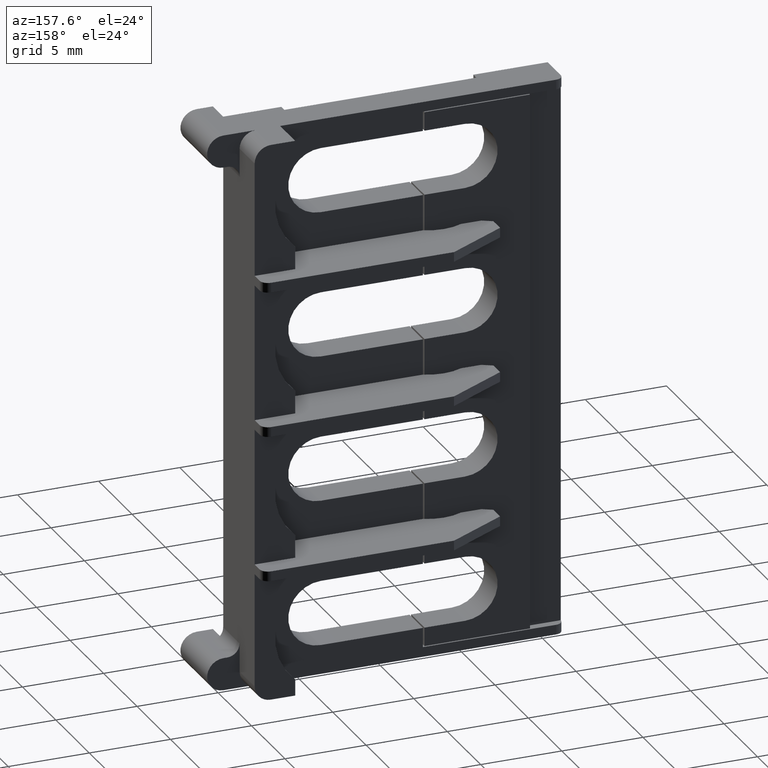
[diagram: clean part render]
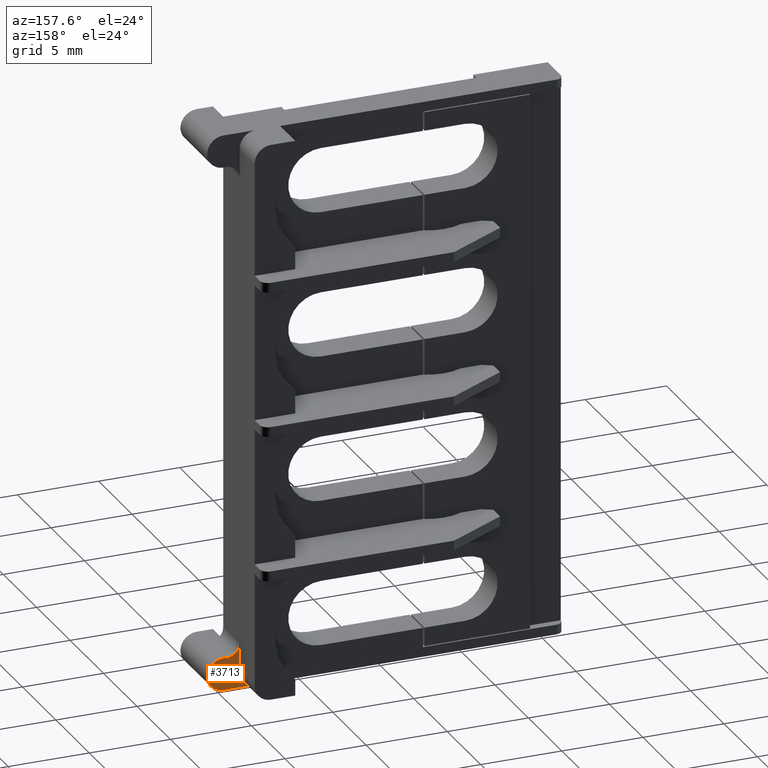
[diagram: same view with one face highlighted and labeled with its STEP entity id]
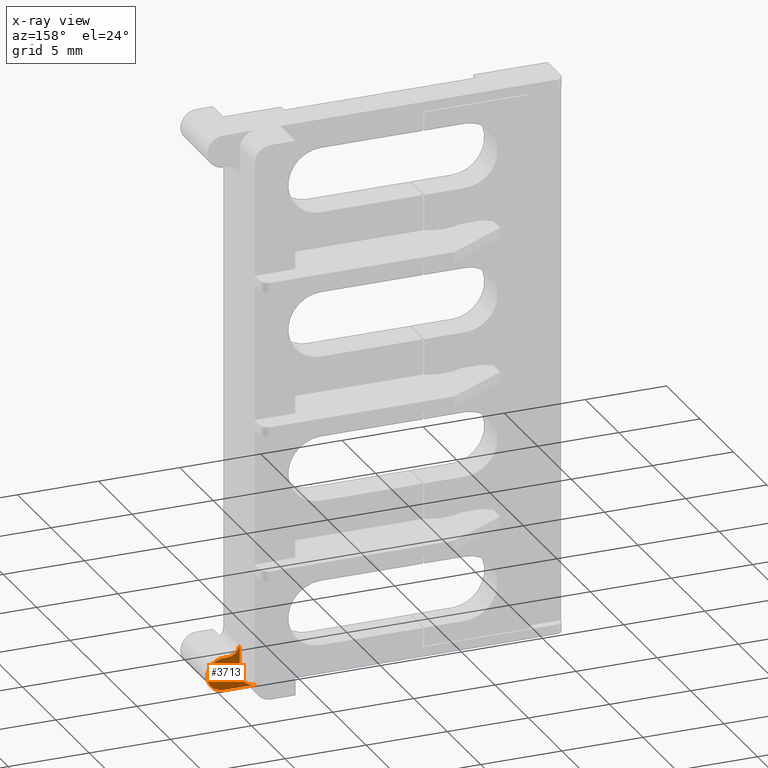
[diagram: x-ray of the same camera — body ghosted, the highlighted face saturated]
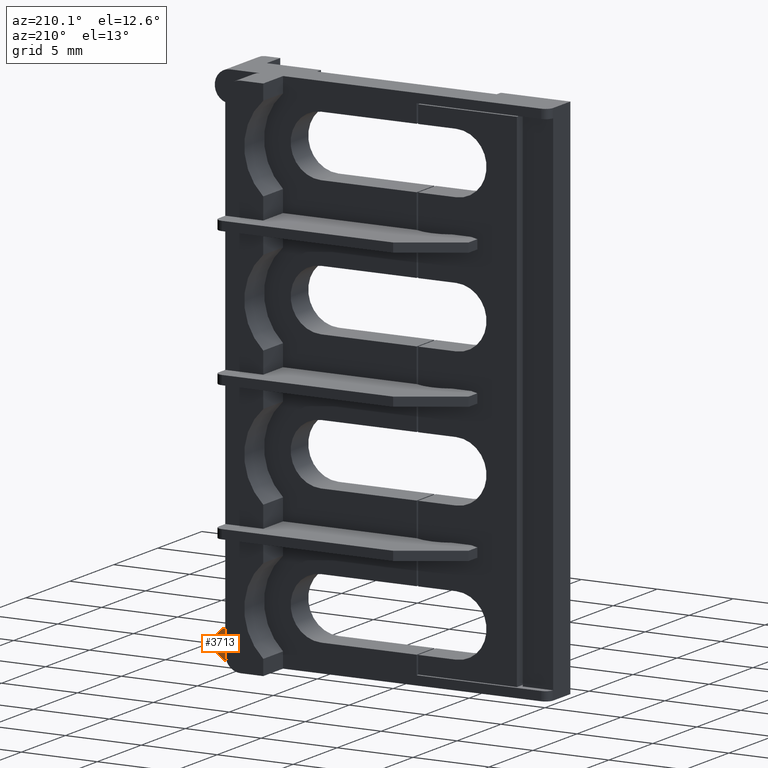
[diagram: same view with one face highlighted and labeled with its STEP entity id]
A machine part, auxiliary view. The second image highlights one B-rep face of the part: STEP entity #3713.
The next image is the same camera in x-ray: the body ghosted, the highlighted face saturated — about 0% of this face is hidden behind the body in this view.
A second angle (auxiliary view) of the same face is appended — the face is thin or edge-on in the first view.
In plain terms, the highlighted planar face has unit normal (-0, 1, -0).
Its self-contained STEP definition (entity closure, byte-faithful):
#5 = CARTESIAN_POINT ( 'NONE',  ( 463.1252094327940100, 146.0878730676890000, 1.600000000000115100 ) ) ;
#20 = DIRECTION ( 'NONE',  ( 0.0000000000000000000, 0.0000000000000000000, 1.000000000000000000 ) ) ;
#32 = DIRECTION ( 'NONE',  ( -2.530253133731424900E-033, 1.000000000000000000, -2.733577826868160200E-020 ) ) ;
#286 = PLANE ( 'NONE',  #3252 ) ;
#292 = CARTESIAN_POINT ( 'NONE',  ( 457.5799457489669600, 146.0878730676890000, 0.6000000000000579300 ) ) ;
#297 = DIRECTION ( 'NONE',  ( 0.0000000000000000000, 2.733577826868160200E-020, 1.000000000000000000 ) ) ;
#314 = DIRECTION ( 'NONE',  ( -2.530253133731424900E-033, 1.000000000000000000, -2.733577826868160200E-020 ) ) ;
#321 = FACE_OUTER_BOUND ( 'NONE', #4507, .T. ) ;
#860 = CARTESIAN_POINT ( 'NONE',  ( 464.1252094327940100, 146.0878730676890000, -1.045883411433843800 ) ) ;
#863 = LINE ( 'NONE', #860, #3149 ) ;
#877 = DIRECTION ( 'NONE',  ( -3.492165866658390800E-015, 0.0000000000000000000, 1.000000000000000000 ) ) ;
#882 = DIRECTION ( 'NONE',  ( -1.000000000000000000, -0.0000000000000000000, -3.492165866658340700E-015 ) ) ;
#884 = LINE ( 'NONE', #885, #3131 ) ;
#885 = CARTESIAN_POINT ( 'NONE',  ( 465.1252094327940100, 146.0878730676890000, 0.6000000000001138900 ) ) ;
#915 = EDGE_CURVE ( 'NONE', #2448, #2350, #2784, .T. ) ;
#1099 = CARTESIAN_POINT ( 'NONE',  ( 463.1252094327940100, 146.0878730676890000, 0.6000000000001070000 ) ) ;
#1122 = CARTESIAN_POINT ( 'NONE',  ( 464.1252094327940100, 146.0878730676890000, 3.350000000000088900 ) ) ;
#1141 = CARTESIAN_POINT ( 'NONE',  ( 465.1252094327940100, 146.0878730676890000, 0.6000000000001138900 ) ) ;
#1143 = CARTESIAN_POINT ( 'NONE',  ( 464.1252094327940100, 146.0878730676890000, 1.600000000000116900 ) ) ;
#1221 = CARTESIAN_POINT ( 'NONE',  ( 465.1252094327940100, 146.0878730676890000, 2.600000000000115100 ) ) ;
#1281 = CARTESIAN_POINT ( 'NONE',  ( 464.8752094327940100, 146.0878730676890000, 2.600000000000102200 ) ) ;
#1749 = DIRECTION ( 'NONE',  ( 1.000000000000000000, -0.0000000000000000000, 3.492165866658340700E-015 ) ) ;
#1771 = LINE ( 'NONE', #1775, #3114 ) ;
#1775 = CARTESIAN_POINT ( 'NONE',  ( 465.1252094327940100, 146.0878730676890000, 2.600000000000114700 ) ) ;
#1909 = CARTESIAN_POINT ( 'NONE',  ( 464.8752094327940100, 146.0878730676890000, 3.350000000000090200 ) ) ;
#1929 = DIRECTION ( 'NONE',  ( 2.530253133731424900E-033, -1.000000000000000000, 2.733577826868160200E-020 ) ) ;
#1934 = DIRECTION ( 'NONE',  ( 0.0000000000000000000, 0.0000000000000000000, 1.000000000000000000 ) ) ;
#2327 = VERTEX_POINT ( 'NONE', #1143 ) ;
#2335 = VERTEX_POINT ( 'NONE', #1099 ) ;
#2350 = VERTEX_POINT ( 'NONE', #1141 ) ;
#2374 = VERTEX_POINT ( 'NONE', #1122 ) ;
#2448 = VERTEX_POINT ( 'NONE', #1221 ) ;
#2602 = VERTEX_POINT ( 'NONE', #1281 ) ;
#2784 = CIRCLE ( 'NONE', #2787, 1.000000000000000000 ) ;
#2787 = AXIS2_PLACEMENT_3D ( 'NONE', #4770, #4775, #4777 ) ;
#3114 = VECTOR ( 'NONE', #1749, 1000.000000000000000 ) ;
#3131 = VECTOR ( 'NONE', #882, 1000.000000000000000 ) ;
#3149 = VECTOR ( 'NONE', #877, 1000.000000000000000 ) ;
#3151 = AXIS2_PLACEMENT_3D ( 'NONE', #1909, #1929, #1934 ) ;
#3161 = CIRCLE ( 'NONE', #3151, 0.7500000000000002200 ) ;
#3205 = AXIS2_PLACEMENT_3D ( 'NONE', #5, #32, #20 ) ;
#3233 = CIRCLE ( 'NONE', #3205, 1.000000000000000000 ) ;
#3252 = AXIS2_PLACEMENT_3D ( 'NONE', #292, #314, #297 ) ;
#3557 = EDGE_CURVE ( 'NONE', #2602, #2448, #1771, .T. ) ;
#3613 = EDGE_CURVE ( 'NONE', #2374, #2602, #3161, .T. ) ;
#3630 = EDGE_CURVE ( 'NONE', #2350, #2335, #884, .T. ) ;
#3634 = EDGE_CURVE ( 'NONE', #2327, #2374, #863, .T. ) ;
#3644 = EDGE_CURVE ( 'NONE', #2327, #2335, #3233, .T. ) ;
#3713 = ADVANCED_FACE ( 'NONE', ( #321 ), #286, .T. ) ;
#4070 = ORIENTED_EDGE ( 'NONE', *, *, #915, .T. ) ;
#4132 = ORIENTED_EDGE ( 'NONE', *, *, #3634, .T. ) ;
#4142 = ORIENTED_EDGE ( 'NONE', *, *, #3613, .T. ) ;
#4149 = ORIENTED_EDGE ( 'NONE', *, *, #3644, .F. ) ;
#4507 = EDGE_LOOP ( 'NONE', ( #5137, #4070, #5140, #4149, #4132, #4142 ) ) ;
#4770 = CARTESIAN_POINT ( 'NONE',  ( 465.1252094327940100, 146.0878730676890000, 1.600000000000115100 ) ) ;
#4775 = DIRECTION ( 'NONE',  ( -2.530253133731424900E-033, 1.000000000000000000, -2.733577826868160200E-020 ) ) ;
#4777 = DIRECTION ( 'NONE',  ( 0.0000000000000000000, 0.0000000000000000000, 1.000000000000000000 ) ) ;
#5137 = ORIENTED_EDGE ( 'NONE', *, *, #3557, .T. ) ;
#5140 = ORIENTED_EDGE ( 'NONE', *, *, #3630, .T. ) ;